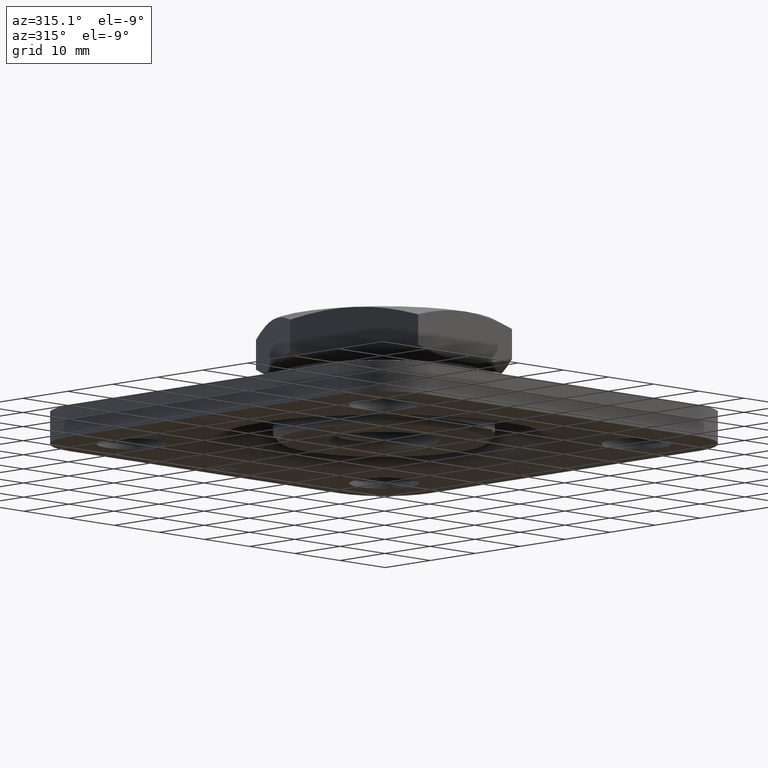
[diagram: clean part render]
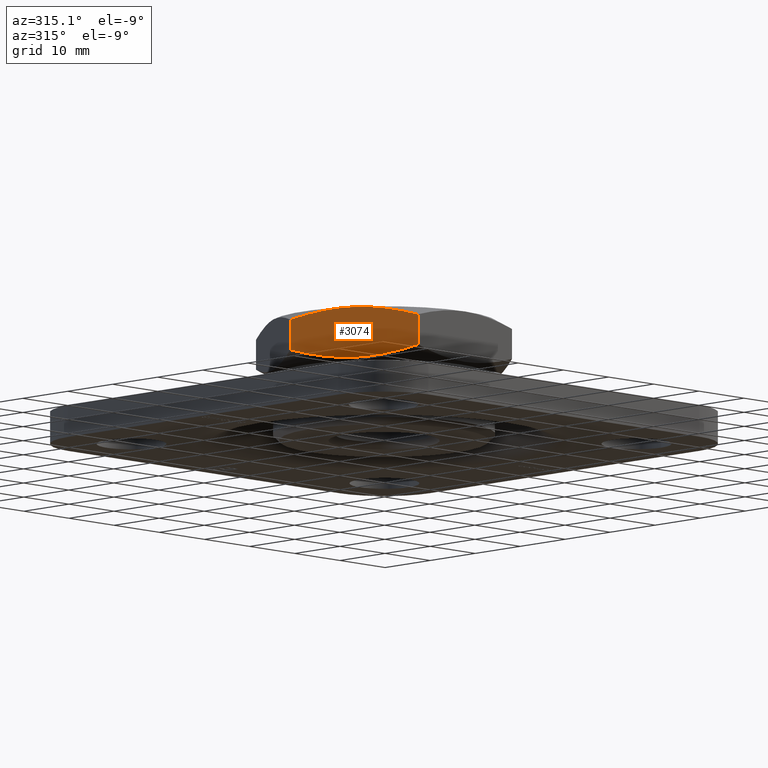
[diagram: same view with one face highlighted and labeled with its STEP entity id]
A machine part, auxiliary view. The second image highlights one B-rep face of the part: STEP entity #3074.
In plain terms, the highlighted planar face has unit normal (0.866, 0.5, -0).
Its self-contained STEP definition (entity closure, byte-faithful):
#144 = EDGE_CURVE ( 'NONE', #15532, #8793, #7126, .T. ) ;
#1232 = DIRECTION ( 'NONE',  ( -0.000000000000000000, -0.000000000000000000, -1.000000000000000000 ) ) ;
#1657 = CARTESIAN_POINT ( 'NONE',  ( -16.47372726584778846, -7.466667385518892530, 11.00000000000000355 ) ) ;
#1719 = CARTESIAN_POINT ( 'NONE',  ( -15.58845726811988897, -9.000000000000001776, 11.00000000000000355 ) ) ;
#1753 = CARTESIAN_POINT ( 'NONE',  ( -19.07835557137324756, -2.955318825516775494, 11.71262048529472999 ) ) ;
#1869 = ORIENTED_EDGE ( 'NONE', *, *, #6837, .T. ) ;
#1965 = ORIENTED_EDGE ( 'NONE', *, *, #13507, .T. ) ;
#2014 = CARTESIAN_POINT ( 'NONE',  ( -10.39230484541328536, -17.99999999999999289, 12.60769515458672707 ) ) ;
#2047 = VERTEX_POINT ( 'NONE', #3642 ) ;
#3074 = ADVANCED_FACE ( 'NONE', ( #10776 ), #14634, .F. ) ;
#3082 = CARTESIAN_POINT ( 'NONE',  ( -19.08173610902307971, -2.949463562550363349, 18.28596074675776251 ) ) ;
#3207 = B_SPLINE_CURVE_WITH_KNOTS ( 'NONE', 3,
 ( #5773, #11995, #9374, #15696, #5611, #10794, #14330, #3082, #4457, #8060 ),
 .UNSPECIFIED., .F., .F.,
 ( 4, 2, 2, 2, 4 ),
 ( 0.01051554819734978885, 0.01182504667393343561, 0.01313454515051708411, 0.01575354210368438632, 0.02099153601001899419 ),
 .UNSPECIFIED. ) ;
#3264 = CARTESIAN_POINT ( 'NONE',  ( -10.39230484541328536, -17.99999999999999289, 12.60769515458672707 ) ) ;
#3615 = ORIENTED_EDGE ( 'NONE', *, *, #4205, .T. ) ;
#3642 = CARTESIAN_POINT ( 'NONE',  ( -10.39230484541325872, -17.99999999999999289, 17.39230484541327115 ) ) ;
#4205 = EDGE_CURVE ( 'NONE', #9972, #4460, #3207, .T. ) ;
#4301 = ORIENTED_EDGE ( 'NONE', *, *, #4513, .F. ) ;
#4457 = CARTESIAN_POINT ( 'NONE',  ( -19.93670996121494809, -1.468605411411161743, 17.88183998255043150 ) ) ;
#4460 = VERTEX_POINT ( 'NONE', #13909 ) ;
#4485 = CARTESIAN_POINT ( 'NONE',  ( -12.09855896486654281, -15.04468117448321784, 18.28737951470527534 ) ) ;
#4513 = EDGE_CURVE ( 'NONE', #2047, #8793, #16199, .T. ) ;
#4800 = LINE ( 'NONE', #13647, #10454 ) ;
#5313 = CARTESIAN_POINT ( 'NONE',  ( -19.93458701958329016, -1.472282454178701627, 12.11693433652695973 ) ) ;
#5611 = CARTESIAN_POINT ( 'NONE',  ( -16.69146171830283620, -7.089540251308574348, 18.92523632532005351 ) ) ;
#5689 = CARTESIAN_POINT ( 'NONE',  ( -14.70318727039198947, -10.53333261448110569, 19.00000000000000000 ) ) ;
#5773 = CARTESIAN_POINT ( 'NONE',  ( -15.58845726811988897, -9.000000000000001776, 18.99999999999999645 ) ) ;
#5785 = CARTESIAN_POINT ( 'NONE',  ( -13.39305315375704275, -12.80255146922220000, 11.29396920543420890 ) ) ;
#6140 = ORIENTED_EDGE ( 'NONE', *, *, #144, .T. ) ;
#6444 = CARTESIAN_POINT ( 'NONE',  ( -20.78460969082653165, 0.000000000000000000, 12.60769515458672707 ) ) ;
#6824 = CARTESIAN_POINT ( 'NONE',  ( -15.58845726811988897, -9.000000000000001776, 18.99999999999999645 ) ) ;
#6837 = EDGE_CURVE ( 'NONE', #15350, #15532, #11905, .T. ) ;
#6940 = CARTESIAN_POINT ( 'NONE',  ( -15.58845726811988897, -9.000000000000001776, 18.99999999999999645 ) ) ;
#6994 = VECTOR ( 'NONE', #16010, 1000.000000000000000 ) ;
#7027 = CARTESIAN_POINT ( 'NONE',  ( -12.09517842721670888, -15.05053643744962777, 11.71403925324223216 ) ) ;
#7126 = B_SPLINE_CURVE_WITH_KNOTS ( 'NONE', 3,
 ( #7495, #14551, #9658, #14492, #8227, #13245, #5785, #7027, #11156, #2014 ),
 .UNSPECIFIED., .F., .F.,
 ( 4, 2, 2, 2, 4 ),
 ( 0.01051554819734980099, 0.01182504667393344776, 0.01313454515051709626, 0.01575354210368438979, 0.02099153601001898378 ),
 .UNSPECIFIED. ) ;
#7223 = CARTESIAN_POINT ( 'NONE',  ( -10.39230484541325872, -17.99999999999999289, 19.00000000000000000 ) ) ;
#7495 = CARTESIAN_POINT ( 'NONE',  ( -15.58845726811988897, -9.000000000000001776, 11.00000000000000355 ) ) ;
#8060 = CARTESIAN_POINT ( 'NONE',  ( -20.78460969082653165, 0.000000000000000000, 17.39230484541327115 ) ) ;
#8227 = CARTESIAN_POINT ( 'NONE',  ( -14.48545281793695061, -10.91045974869142121, 11.07476367467994471 ) ) ;
#8793 = VERTEX_POINT ( 'NONE', #3264 ) ;
#9037 = EDGE_CURVE ( 'NONE', #4460, #15350, #4800, .T. ) ;
#9374 = CARTESIAN_POINT ( 'NONE',  ( -16.03054008682955001, -8.234290096841606399, 18.99057089457783221 ) ) ;
#9658 = CARTESIAN_POINT ( 'NONE',  ( -15.14637444941022615, -9.765709903158390048, 11.00942910542216246 ) ) ;
#9972 = VERTEX_POINT ( 'NONE', #6824 ) ;
#10132 = CARTESIAN_POINT ( 'NONE',  ( -20.78460969082653165, 0.000000000000000000, 12.60769515458672707 ) ) ;
#10454 = VECTOR ( 'NONE', #1232, 1000.000000000000000 ) ;
#10776 = FACE_OUTER_BOUND ( 'NONE', #11997, .T. ) ;
#10794 = CARTESIAN_POINT ( 'NONE',  ( -17.34865996334627880, -5.951239500248215464, 18.81494484254124799 ) ) ;
#10947 = DIRECTION ( 'NONE',  ( -0.5000000000000002220, 0.8660254037844384856, 0.000000000000000000 ) ) ;
#11156 = CARTESIAN_POINT ( 'NONE',  ( -11.24020457502483872, -16.53139458858882449, 12.11816001744956672 ) ) ;
#11530 = CARTESIAN_POINT ( 'NONE',  ( -15.58845726811988897, -9.000000000000001776, 11.00000000000000355 ) ) ;
#11905 = B_SPLINE_CURVE_WITH_KNOTS ( 'NONE', 3,
 ( #6444, #5313, #1753, #15216, #1657, #11530 ),
 .UNSPECIFIED., .F., .F.,
 ( 4, 2, 4 ),
 ( 2.380728322741556499E-07, 0.005257893135091037777, 0.01051554819734980099 ),
 .UNSPECIFIED. ) ;
#11916 = CARTESIAN_POINT ( 'NONE',  ( -11.24232751665649310, -16.52771754582128949, 17.88306566347304383 ) ) ;
#11995 = CARTESIAN_POINT ( 'NONE',  ( -15.80894714424574410, -8.618100331995462327, 18.99999999999999645 ) ) ;
#11997 = EDGE_LOOP ( 'NONE', ( #12921, #1869, #6140, #4301, #1965, #3615 ) ) ;
#12434 = CARTESIAN_POINT ( 'NONE',  ( -20.78460969082652454, 5.470030236029019568E-17, 19.00000000000000000 ) ) ;
#12733 = B_SPLINE_CURVE_WITH_KNOTS ( 'NONE', 3,
 ( #13214, #11916, #4485, #15669, #5689, #6940 ),
 .UNSPECIFIED., .F., .F.,
 ( 4, 2, 4 ),
 ( 2.380728322769715315E-07, 0.005257893135091033440, 0.01051554819734978885 ),
 .UNSPECIFIED. ) ;
#12921 = ORIENTED_EDGE ( 'NONE', *, *, #9037, .T. ) ;
#13214 = CARTESIAN_POINT ( 'NONE',  ( -10.39230484541325872, -17.99999999999999289, 17.39230484541327115 ) ) ;
#13245 = CARTESIAN_POINT ( 'NONE',  ( -13.82825457289350091, -12.04876049975177743, 11.18505515745875556 ) ) ;
#13507 = EDGE_CURVE ( 'NONE', #2047, #9972, #12733, .T. ) ;
#13647 = CARTESIAN_POINT ( 'NONE',  ( -20.78460969082652454, 5.470030236029019568E-17, 19.00000000000000000 ) ) ;
#13909 = CARTESIAN_POINT ( 'NONE',  ( -20.78460969082653165, 0.000000000000000000, 17.39230484541327115 ) ) ;
#14330 = CARTESIAN_POINT ( 'NONE',  ( -17.78386138248273696, -5.197448530777792897, 18.70603079456579465 ) ) ;
#14492 = CARTESIAN_POINT ( 'NONE',  ( -14.70525031332735466, -10.52975931929884190, 11.04683108270947756 ) ) ;
#14551 = CARTESIAN_POINT ( 'NONE',  ( -15.36796739199403738, -9.381899668004543003, 11.00000000000000355 ) ) ;
#14634 = PLANE ( 'NONE',  #15736 ) ;
#14803 = DIRECTION ( 'NONE',  ( 0.8660254037844385966, 0.5000000000000003331, -0.000000000000000000 ) ) ;
#15216 = CARTESIAN_POINT ( 'NONE',  ( -17.34799259689864570, -5.952395412842794720, 11.15322181168135707 ) ) ;
#15350 = VERTEX_POINT ( 'NONE', #10132 ) ;
#15532 = VERTEX_POINT ( 'NONE', #1719 ) ;
#15669 = CARTESIAN_POINT ( 'NONE',  ( -13.82892193934114111, -12.04760458715720084, 18.84677818831863050 ) ) ;
#15696 = CARTESIAN_POINT ( 'NONE',  ( -16.47166422291241261, -7.470240680701151881, 18.95316891729051889 ) ) ;
#15736 = AXIS2_PLACEMENT_3D ( 'NONE', #12434, #14803, #10947 ) ;
#16010 = DIRECTION ( 'NONE',  ( -0.000000000000000000, -0.000000000000000000, -1.000000000000000000 ) ) ;
#16199 = LINE ( 'NONE', #7223, #6994 ) ;